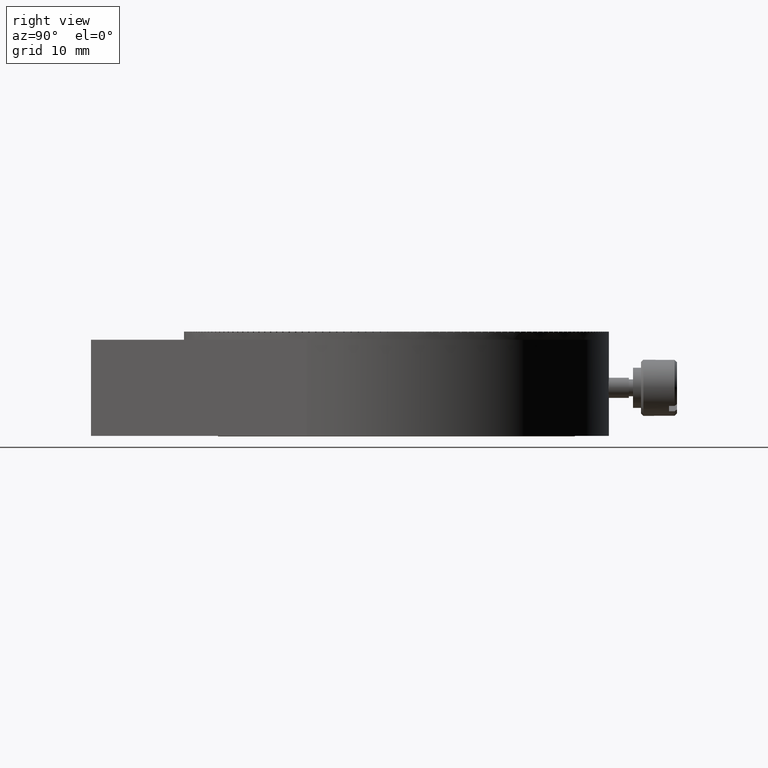
[diagram: clean part render]
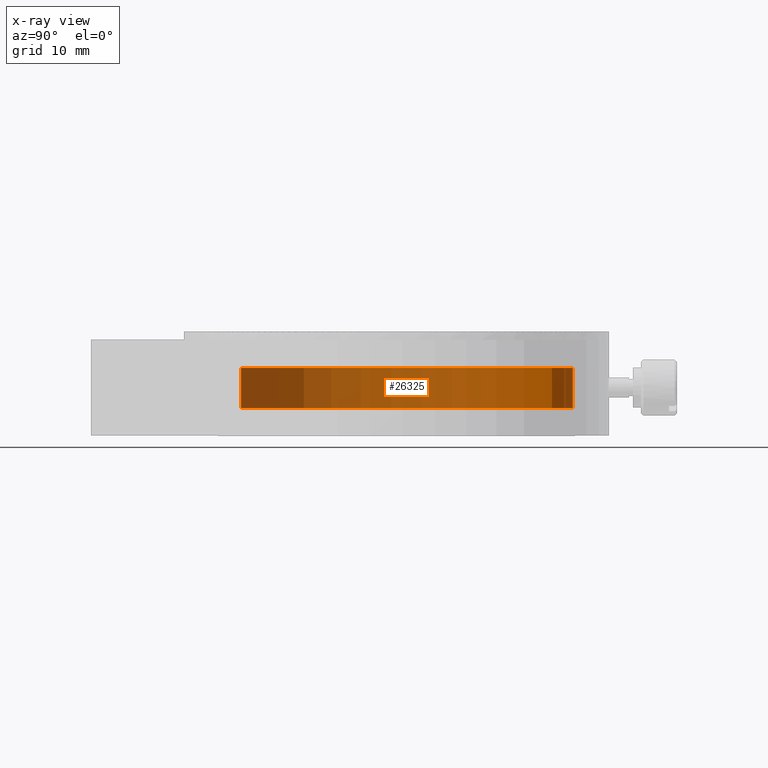
[diagram: x-ray — body ghosted, one internal face saturated and labeled with its STEP entity id]
A machine part, right view, then the same camera in x-ray: the body is ghosted and one INTERNAL B-rep face — a face not visible from any outside direction — is saturated and labeled: STEP entity #26325.
In plain terms, the highlighted cylindrical surface (partial cylindrical patch) has radius 22 mm, axis along (-0, 0, 1).
Its self-contained STEP definition (entity closure, byte-faithful):
#1982 = AXIS2_PLACEMENT_3D ( 'NONE', #46763, #11956, #7468 ) ;
#2558 = VERTEX_POINT ( 'NONE', #58410 ) ;
#4540 = DIRECTION ( 'NONE',  ( 0.000000000000000000, 0.000000000000000000, 1.000000000000000000 ) ) ;
#5182 = CARTESIAN_POINT ( 'NONE',  ( 2.694222958124177204E-15, 0.000000000000000000, -22.00000000000000355 ) ) ;
#6089 = CARTESIAN_POINT ( 'NONE',  ( 0.000000000000000000, -3.524999999999999467, 0.000000000000000000 ) ) ;
#6529 = DIRECTION ( 'NONE',  ( -0.000000000000000000, 1.000000000000000000, -0.000000000000000000 ) ) ;
#7468 = DIRECTION ( 'NONE',  ( 0.000000000000000000, 0.000000000000000000, 1.000000000000000000 ) ) ;
#9023 = CARTESIAN_POINT ( 'NONE',  ( 0.000000000000000000, -8.525000000000000355, 0.000000000000000000 ) ) ;
#9361 = AXIS2_PLACEMENT_3D ( 'NONE', #6089, #61020, #17246 ) ;
#11956 = DIRECTION ( 'NONE',  ( -0.000000000000000000, 1.000000000000000000, -0.000000000000000000 ) ) ;
#12588 = CYLINDRICAL_SURFACE ( 'NONE', #1982, 22.00000000000000355 ) ;
#14795 = AXIS2_PLACEMENT_3D ( 'NONE', #9023, #28805, #4540 ) ;
#17246 = DIRECTION ( 'NONE',  ( 0.000000000000000000, 0.000000000000000000, 1.000000000000000000 ) ) ;
#17718 = CARTESIAN_POINT ( 'NONE',  ( 0.000000000000000000, -3.524999999999999467, 22.00000000000000355 ) ) ;
#17904 = EDGE_CURVE ( 'NONE', #42235, #28560, #32071, .T. ) ;
#18896 = CIRCLE ( 'NONE', #14795, 22.00000000000000355 ) ;
#19322 = CARTESIAN_POINT ( 'NONE',  ( 2.694222958124177204E-15, -3.524999999999999467, -22.00000000000000355 ) ) ;
#21539 = EDGE_CURVE ( 'NONE', #2558, #24225, #24975, .T. ) ;
#24225 = VERTEX_POINT ( 'NONE', #19322 ) ;
#24975 = LINE ( 'NONE', #5182, #50156 ) ;
#26325 = ADVANCED_FACE ( 'NONE', ( #51884 ), #12588, .T. ) ;
#28560 = VERTEX_POINT ( 'NONE', #17718 ) ;
#28805 = DIRECTION ( 'NONE',  ( -0.000000000000000000, 1.000000000000000000, -0.000000000000000000 ) ) ;
#29829 = EDGE_CURVE ( 'NONE', #2558, #42235, #18896, .T. ) ;
#30972 = ORIENTED_EDGE ( 'NONE', *, *, #17904, .T. ) ;
#31435 = CARTESIAN_POINT ( 'NONE',  ( 0.000000000000000000, 0.000000000000000000, 22.00000000000000355 ) ) ;
#32071 = LINE ( 'NONE', #31435, #37833 ) ;
#33319 = ORIENTED_EDGE ( 'NONE', *, *, #21539, .F. ) ;
#34425 = EDGE_LOOP ( 'NONE', ( #33319, #61671, #30972, #50893 ) ) ;
#37689 = CARTESIAN_POINT ( 'NONE',  ( 0.000000000000000000, -8.525000000000000355, 22.00000000000000355 ) ) ;
#37833 = VECTOR ( 'NONE', #6529, 1000.000000000000000 ) ;
#42235 = VERTEX_POINT ( 'NONE', #37689 ) ;
#46763 = CARTESIAN_POINT ( 'NONE',  ( 0.000000000000000000, 0.000000000000000000, 0.000000000000000000 ) ) ;
#50156 = VECTOR ( 'NONE', #53114, 1000.000000000000000 ) ;
#50893 = ORIENTED_EDGE ( 'NONE', *, *, #57409, .F. ) ;
#51884 = FACE_OUTER_BOUND ( 'NONE', #34425, .T. ) ;
#53114 = DIRECTION ( 'NONE',  ( -0.000000000000000000, 1.000000000000000000, -0.000000000000000000 ) ) ;
#57409 = EDGE_CURVE ( 'NONE', #24225, #28560, #62408, .T. ) ;
#58410 = CARTESIAN_POINT ( 'NONE',  ( 2.694222958124177204E-15, -8.525000000000000355, -22.00000000000000355 ) ) ;
#61020 = DIRECTION ( 'NONE',  ( -0.000000000000000000, 1.000000000000000000, -0.000000000000000000 ) ) ;
#61671 = ORIENTED_EDGE ( 'NONE', *, *, #29829, .T. ) ;
#62408 = CIRCLE ( 'NONE', #9361, 22.00000000000000355 ) ;